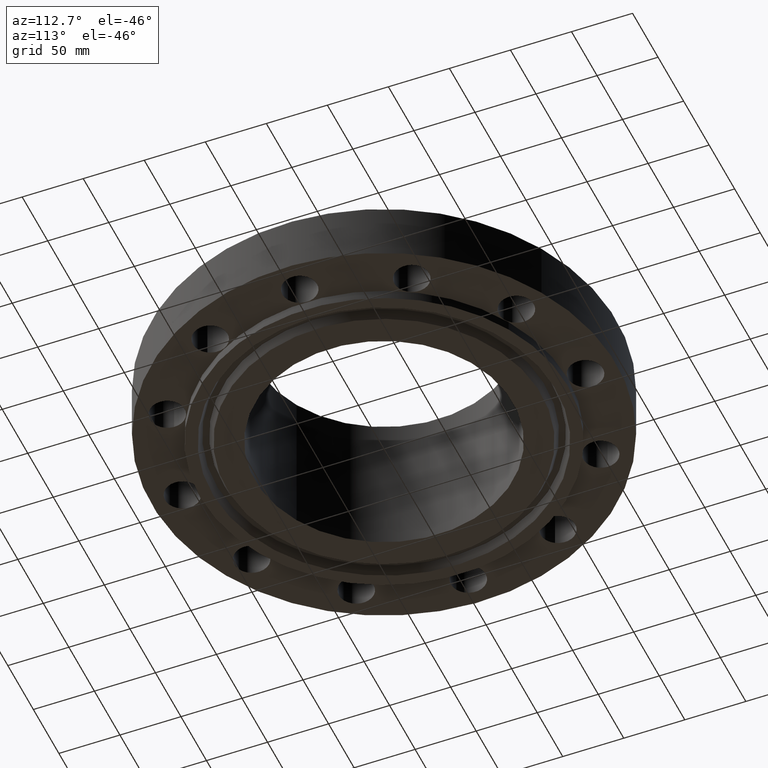
[diagram: clean part render]
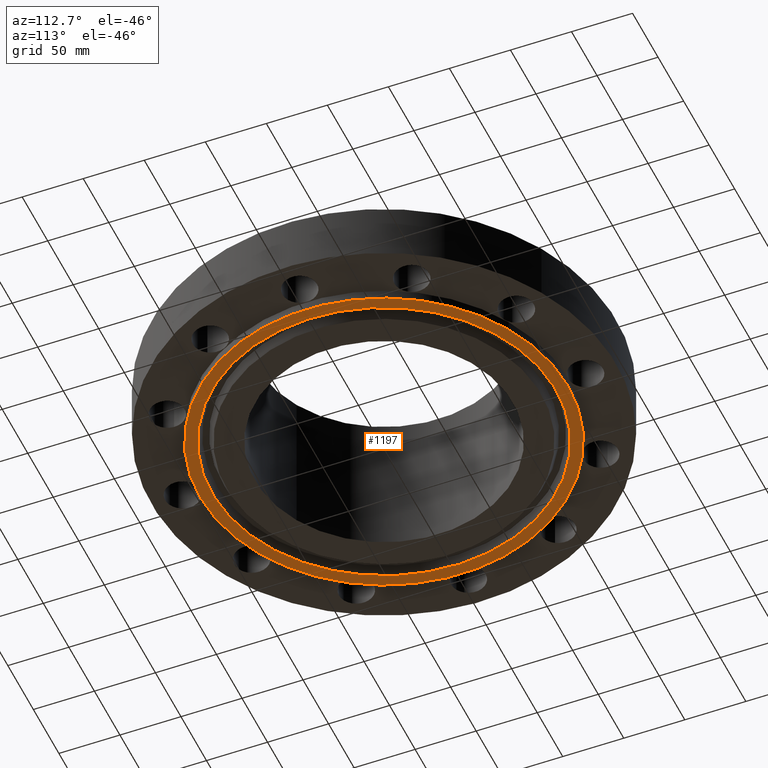
[diagram: same view with one face highlighted and labeled with its STEP entity id]
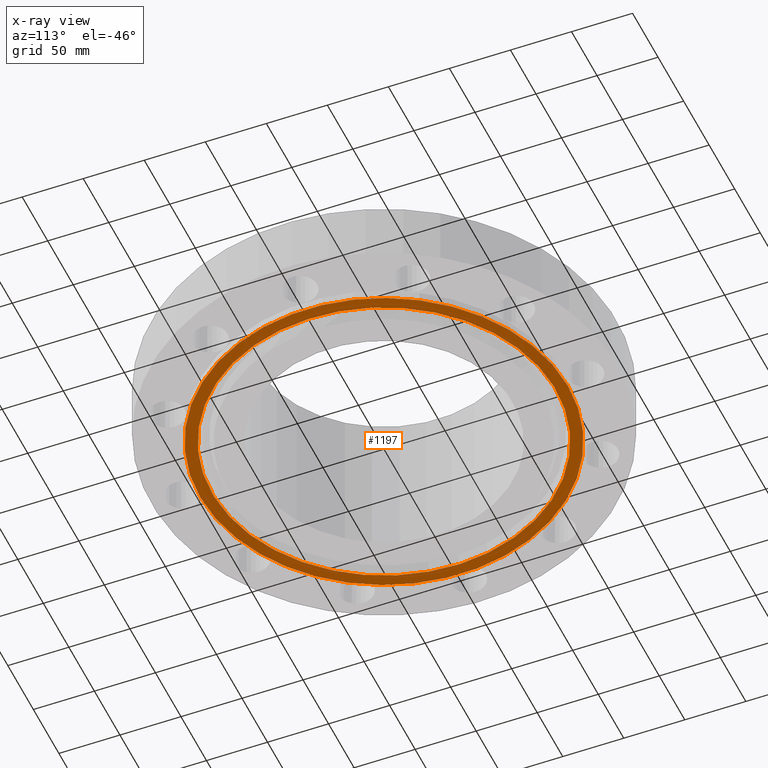
[diagram: x-ray of the same camera — body ghosted, the highlighted face saturated]
A machine part, auxiliary view. The second image highlights one B-rep face of the part: STEP entity #1197.
The next image is the same camera in x-ray: the body ghosted, the highlighted face saturated — about 0% of this face is hidden behind the body in this view.
In plain terms, the highlighted planar face has unit normal (0, 0, -1).
Its self-contained STEP definition (entity closure, byte-faithful):
#431=AXIS2_PLACEMENT_3D('Circle Axis2P3D',#429,#430,$) ;
#466=AXIS2_PLACEMENT_3D('Circle Axis2P3D',#464,#465,$) ;
#1173=AXIS2_PLACEMENT_3D('Plane Axis2P3D',#1170,#1171,#1172) ;
#1181=AXIS2_PLACEMENT_3D('Circle Axis2P3D',#1179,#1180,$) ;
#1190=AXIS2_PLACEMENT_3D('Circle Axis2P3D',#1188,#1189,$) ;
#429=CARTESIAN_POINT('Axis2P3D Location',(0.,0.,-0.313000000001)) ;
#433=CARTESIAN_POINT('Vertex',(-2.84658913547,-5.21064646124,-0.313000000001)) ;
#435=CARTESIAN_POINT('Vertex',(2.84658913547,5.21064646124,-0.313000000001)) ;
#464=CARTESIAN_POINT('Axis2P3D Location',(0.,0.,-0.313000000001)) ;
#1170=CARTESIAN_POINT('Axis2P3D Location',(0.,4.16450000002,-0.313000000001)) ;
#1179=CARTESIAN_POINT('Axis2P3D Location',(1.39870617276E-016,5.59482469102E-016,-0.313000000001)) ;
#1183=CARTESIAN_POINT('Vertex',(2.65937346265,-4.86795047083,-0.313000000001)) ;
#1185=CARTESIAN_POINT('Vertex',(-2.65937346265,4.86795047083,-0.313000000001)) ;
#1188=CARTESIAN_POINT('Axis2P3D Location',(2.79741234551E-016,-5.59482469102E-016,-0.313000000001)) ;
#430=DIRECTION('Axis2P3D Direction',(0.,0.,-0.0393700787402)) ;
#465=DIRECTION('Axis2P3D Direction',(0.,0.,-0.0393700787402)) ;
#1171=DIRECTION('Axis2P3D Direction',(0.,0.,-0.0393700787402)) ;
#1172=DIRECTION('Axis2P3D XDirection',(0.0393700787402,0.,0.)) ;
#1180=DIRECTION('Axis2P3D Direction',(0.,0.,-0.0393700787402)) ;
#1189=DIRECTION('Axis2P3D Direction',(0.,0.,-0.0393700787402)) ;
#1176=ORIENTED_EDGE('',*,*,#437,.T.) ;
#1177=ORIENTED_EDGE('',*,*,#468,.T.) ;
#1194=ORIENTED_EDGE('',*,*,#1187,.F.) ;
#1195=ORIENTED_EDGE('',*,*,#1192,.F.) ;
#1196=FACE_BOUND('',#1193,.T.) ;
#1197=ADVANCED_FACE('PartBody',(#1178,#1196),#1174,.T.) ;
#432=CIRCLE('generated circle',#431,5.93750000002) ;
#467=CIRCLE('generated circle',#466,5.93750000002) ;
#1182=CIRCLE('generated circle',#1181,5.54700000002) ;
#1191=CIRCLE('generated circle',#1190,5.54700000002) ;
#437=EDGE_CURVE('',#434,#436,#432,.T.) ;
#468=EDGE_CURVE('',#436,#434,#467,.T.) ;
#1187=EDGE_CURVE('',#1184,#1186,#1182,.T.) ;
#1192=EDGE_CURVE('',#1186,#1184,#1191,.T.) ;
#1175=EDGE_LOOP('',(#1176,#1177)) ;
#1193=EDGE_LOOP('',(#1194,#1195)) ;
#1178=FACE_OUTER_BOUND('',#1175,.T.) ;
#1174=PLANE('',#1173) ;
#434=VERTEX_POINT('',#433) ;
#436=VERTEX_POINT('',#435) ;
#1184=VERTEX_POINT('',#1183) ;
#1186=VERTEX_POINT('',#1185) ;